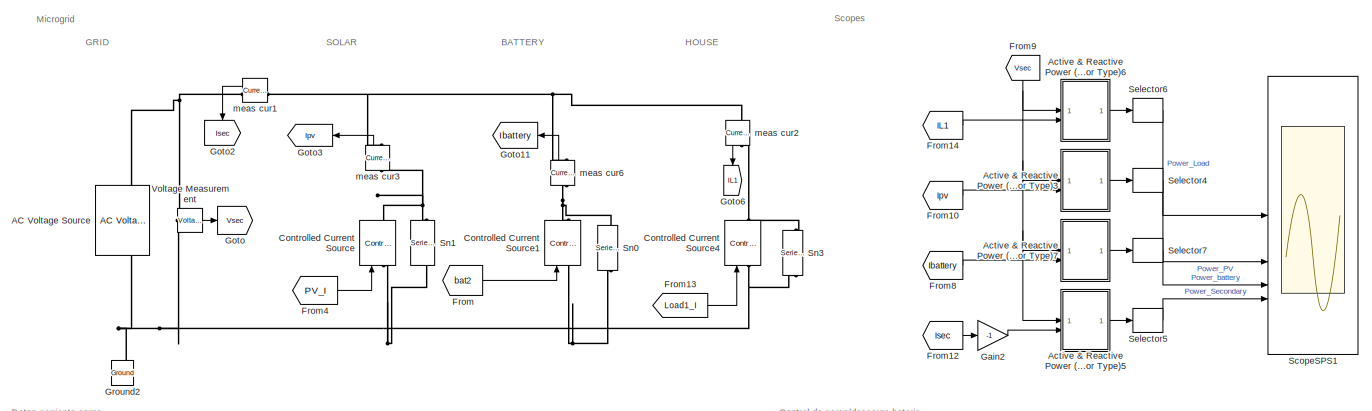
[diagram: root canvas - part 1/2, full width, top band]
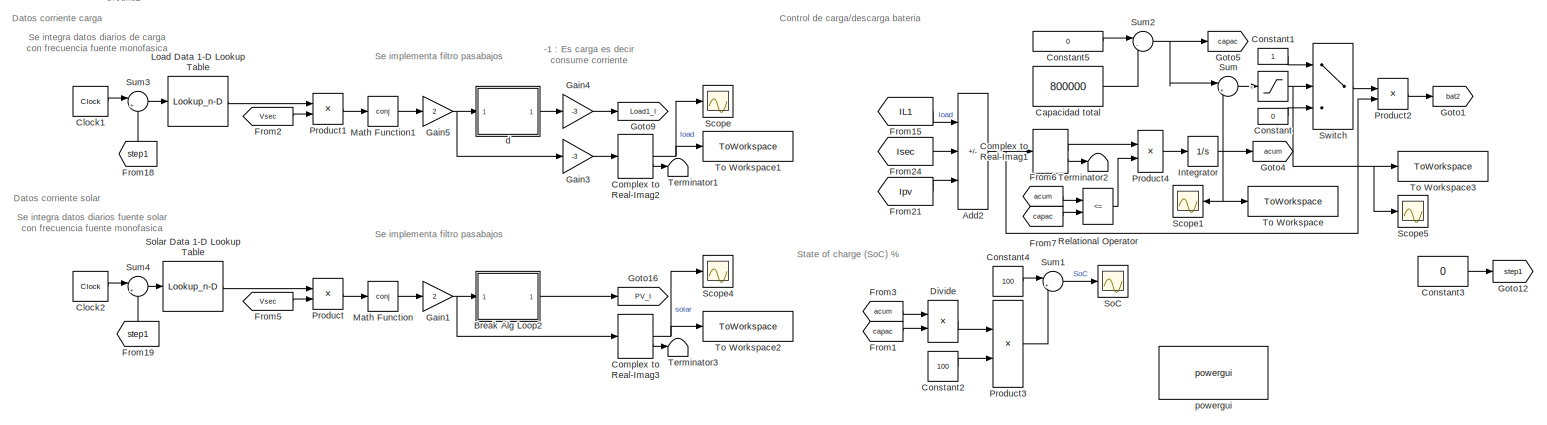
[diagram: root canvas - part 2/2, full width, bottom band]
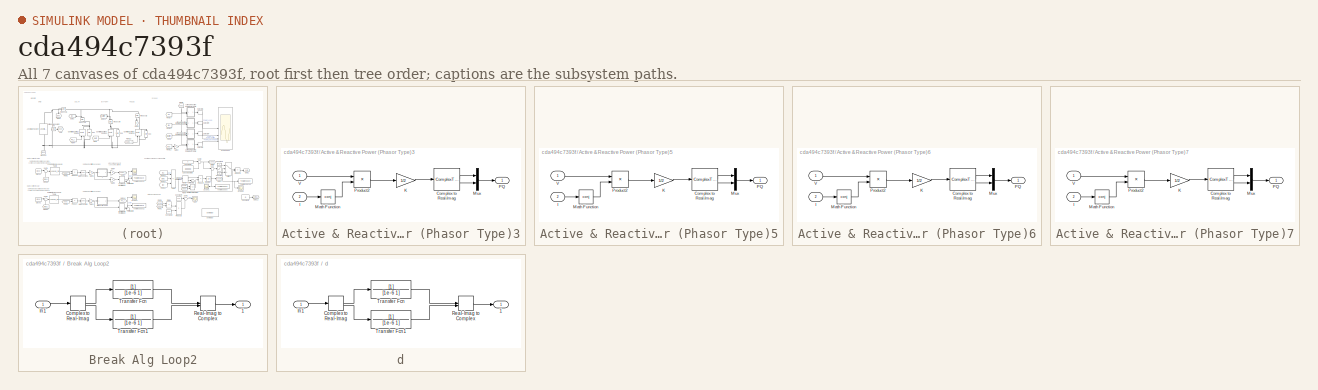
[diagram: thumbnail index - all 7 canvases of the model, root first then tree order]
MODEL slx_cda494c7393f
KIND model
CONFIG AbsTol = auto
CONFIG EnableMultiTasking = off
CONFIG FixedStep = 1/(1000)
CONFIG MaxStep = 50
CONFIG MinStep = auto
CONFIG PreLoadFcn = load('SmallScaleMicroGridSolarLoadData24h.mat')\n
CONFIG RelTol = 1e-4
CONFIG SampleTimeConstraint = Unconstrained
CONFIG SolverName = ode23tb
CONFIG StartTime = 0
CONFIG StopTime = 60*60*24
BLOCK [Saturate] -
  LowerLimit = 0
  UpperLimit = inf
BLOCK [Reference] AC Voltage Source  REF=spsACVoltageSourceLib/AC Voltage Source
  LibrarySourceBlock = sps_lib/Sources/AC Voltage Source
  SourceBlock = spsACVoltageSourceLib/AC Voltage Source
  SourceType = AC Voltage Source
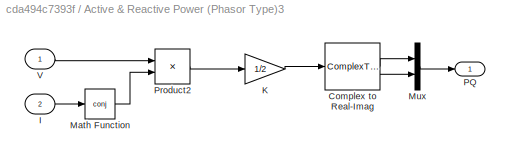
BLOCK [SubSystem] Active & Reactive Power (Phasor Type)3
  DialogController = POWERSYS.PowerSysDialog
BLOCK [ComplexToRealImag] Active & Reactive Power (Phasor Type)3/Complex to Real-Imag
BLOCK [Inport] Active & Reactive Power (Phasor Type)3/I
  Port = 2
BLOCK [Gain] Active & Reactive Power (Phasor Type)3/K
  Gain = 1/2
  OutDataTypeStr = Inherit: Same as input
  ParamDataTypeStr = Inherit: Same as input
  SaturateOnIntegerOverflow = on
BLOCK [Math] Active & Reactive Power (Phasor Type)3/Math Function
  Operator = conj
  SignedPower = on
BLOCK [Mux] Active & Reactive Power (Phasor Type)3/Mux
  DisplayOption = bar
  Inputs = 2
BLOCK [Outport] Active & Reactive Power (Phasor Type)3/PQ
  VectorParamsAs1DForOutWhenUnconnected = off
BLOCK [Product] Active & Reactive Power (Phasor Type)3/Product2
  InputSameDT = on
  OutDataTypeStr = Inherit: Same as first input
  SaturateOnIntegerOverflow = on
BLOCK [Inport] Active & Reactive Power (Phasor Type)3/V
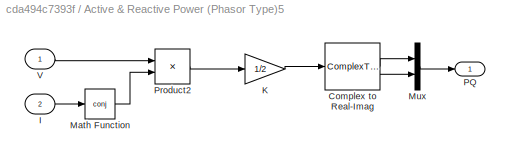
BLOCK [SubSystem] Active & Reactive Power (Phasor Type)5
  DialogController = POWERSYS.PowerSysDialog
BLOCK [ComplexToRealImag] Active & Reactive Power (Phasor Type)5/Complex to Real-Imag
BLOCK [Inport] Active & Reactive Power (Phasor Type)5/I
  Port = 2
BLOCK [Gain] Active & Reactive Power (Phasor Type)5/K
  Gain = 1/2
  OutDataTypeStr = Inherit: Same as input
  ParamDataTypeStr = Inherit: Same as input
  SaturateOnIntegerOverflow = on
BLOCK [Math] Active & Reactive Power (Phasor Type)5/Math Function
  Operator = conj
  SignedPower = on
BLOCK [Mux] Active & Reactive Power (Phasor Type)5/Mux
  DisplayOption = bar
  Inputs = 2
BLOCK [Outport] Active & Reactive Power (Phasor Type)5/PQ
  VectorParamsAs1DForOutWhenUnconnected = off
BLOCK [Product] Active & Reactive Power (Phasor Type)5/Product2
  InputSameDT = on
  OutDataTypeStr = Inherit: Same as first input
  SaturateOnIntegerOverflow = on
BLOCK [Inport] Active & Reactive Power (Phasor Type)5/V
BLOCK [SubSystem] Active & Reactive Power (Phasor Type)6
  DialogController = POWERSYS.PowerSysDialog
BLOCK [ComplexToRealImag] Active & Reactive Power (Phasor Type)6/Complex to Real-Imag
BLOCK [Inport] Active & Reactive Power (Phasor Type)6/I
  Port = 2
BLOCK [Gain] Active & Reactive Power (Phasor Type)6/K
  Gain = 1/2
  OutDataTypeStr = Inherit: Same as input
  ParamDataTypeStr = Inherit: Same as input
  SaturateOnIntegerOverflow = on
BLOCK [Math] Active & Reactive Power (Phasor Type)6/Math Function
  Operator = conj
  SignedPower = on
BLOCK [Mux] Active & Reactive Power (Phasor Type)6/Mux
  DisplayOption = bar
  Inputs = 2
BLOCK [Outport] Active & Reactive Power (Phasor Type)6/PQ
  VectorParamsAs1DForOutWhenUnconnected = off
BLOCK [Product] Active & Reactive Power (Phasor Type)6/Product2
  InputSameDT = on
  OutDataTypeStr = Inherit: Same as first input
  SaturateOnIntegerOverflow = on
BLOCK [Inport] Active & Reactive Power (Phasor Type)6/V
BLOCK [SubSystem] Active & Reactive Power (Phasor Type)7
  DialogController = POWERSYS.PowerSysDialog
BLOCK [ComplexToRealImag] Active & Reactive Power (Phasor Type)7/Complex to Real-Imag
BLOCK [Inport] Active & Reactive Power (Phasor Type)7/I
  Port = 2
BLOCK [Gain] Active & Reactive Power (Phasor Type)7/K
  Gain = 1/2
  OutDataTypeStr = Inherit: Same as input
  ParamDataTypeStr = Inherit: Same as input
  SaturateOnIntegerOverflow = on
BLOCK [Math] Active & Reactive Power (Phasor Type)7/Math Function
  Operator = conj
  SignedPower = on
BLOCK [Mux] Active & Reactive Power (Phasor Type)7/Mux
  DisplayOption = bar
  Inputs = 2
BLOCK [Outport] Active & Reactive Power (Phasor Type)7/PQ
  VectorParamsAs1DForOutWhenUnconnected = off
BLOCK [Product] Active & Reactive Power (Phasor Type)7/Product2
  InputSameDT = on
  OutDataTypeStr = Inherit: Same as first input
  SaturateOnIntegerOverflow = on
BLOCK [Inport] Active & Reactive Power (Phasor Type)7/V
BLOCK [Sum] Add2
  IconShape = rectangular
  Inputs = +--
BLOCK [SubSystem] Break Alg Loop2
BLOCK [Outport] Break Alg Loop2/1 
BLOCK [ComplexToRealImag] Break Alg Loop2/Complex to Real-Imag
BLOCK [Inport] Break Alg Loop2/In1
BLOCK [RealImagToComplex] Break Alg Loop2/Real-Imag to Complex
BLOCK [TransferFcn] Break Alg Loop2/Transfer Fcn
  Denominator = [1e-6 1]
BLOCK [TransferFcn] Break Alg Loop2/Transfer Fcn1
  Denominator = [1e-6 1]
BLOCK [Constant] Capacidad total
  Value = 800000
BLOCK [Clock] Clock1
  Decimation = 1
BLOCK [Clock] Clock2
  Decimation = 1
BLOCK [ComplexToRealImag] Complex to Real-Imag1
BLOCK [ComplexToRealImag] Complex to Real-Imag2
BLOCK [ComplexToRealImag] Complex to Real-Imag3
BLOCK [Constant] Constant
  Value = 0
BLOCK [Constant] Constant1
BLOCK [Constant] Constant2
  Value = 100
BLOCK [Constant] Constant3
  Value = 0
BLOCK [Constant] Constant4
  Value = 100
BLOCK [Constant] Constant5
  Value = 0
BLOCK [Reference] Controlled Current Source  REF=spsControlledCurrentSourceLib/Controlled Current Source
  NameLocation = right
  SourceBlock = spsControlledCurrentSourceLib/Controlled Current Source
  SourceType = Controlled Current Source
BLOCK [Reference] Controlled Current Source1  REF=spsControlledCurrentSourceLib/Controlled Current Source
  NameLocation = right
  SourceBlock = spsControlledCurrentSourceLib/Controlled Current Source
  SourceType = Controlled Current Source
BLOCK [Reference] Controlled Current Source4  REF=spsControlledCurrentSourceLib/Controlled Current Source
  NameLocation = right
  SourceBlock = spsControlledCurrentSourceLib/Controlled Current Source
  SourceType = Controlled Current Source
BLOCK [Product] Divide
  Inputs = */
BLOCK [From] From
  GotoTag = bat2
BLOCK [From] From1
  GotoTag = capac
BLOCK [From] From10
  GotoTag = Ipv
  TagVisibility = global
BLOCK [From] From12
  GotoTag = Isec
  TagVisibility = global
BLOCK [From] From13
  GotoTag = Load1_I
  TagVisibility = global
BLOCK [From] From14
  GotoTag = IL1
  TagVisibility = global
BLOCK [From] From15
  GotoTag = IL1
  TagVisibility = global
BLOCK [From] From18
  GotoTag = step1
  NameLocation = right
BLOCK [From] From19
  GotoTag = step1
  NameLocation = right
BLOCK [From] From2
  GotoTag = Vsec
  TagVisibility = global
BLOCK [From] From21
  GotoTag = Ipv
  TagVisibility = global
BLOCK [From] From24
  GotoTag = Isec
  TagVisibility = global
BLOCK [From] From3
  GotoTag = acum
BLOCK [From] From4
  GotoTag = PV_I
  TagVisibility = global
BLOCK [From] From5
  GotoTag = Vsec
  TagVisibility = global
BLOCK [From] From6
  GotoTag = acum
BLOCK [From] From7
  GotoTag = capac
BLOCK [From] From8
  GotoTag = Ibattery
  TagVisibility = global
BLOCK [From] From9
  GotoTag = Vsec
  NameLocation = left
  TagVisibility = global
BLOCK [Gain] Gain1
  Gain = 2
BLOCK [Gain] Gain2
  Gain = -1
BLOCK [Gain] Gain3
  Gain = -3
BLOCK [Gain] Gain4
  Gain = -3
BLOCK [Gain] Gain5
  Gain = 2
BLOCK [Goto] Goto
  GotoTag = Vsec
  NameLocation = top
  TagVisibility = global
BLOCK [Goto] Goto1
  GotoTag = bat2
BLOCK [Goto] Goto11
  GotoTag = Ibattery
  NameLocation = top
  TagVisibility = global
BLOCK [Goto] Goto12
  GotoTag = step1
BLOCK [Goto] Goto16
  GotoTag = PV_I
  TagVisibility = global
BLOCK [Goto] Goto2
  GotoTag = Isec
  NameLocation = left
  TagVisibility = global
BLOCK [Goto] Goto3
  GotoTag = Ipv
  NameLocation = top
  TagVisibility = global
BLOCK [Goto] Goto4
  GotoTag = acum
BLOCK [Goto] Goto5
  GotoTag = capac
BLOCK [Goto] Goto6
  GotoTag = IL1
  NameLocation = left
  TagVisibility = global
BLOCK [Goto] Goto9
  GotoTag = Load1_I
  TagVisibility = global
BLOCK [Reference] Ground2  REF=spsGroundLib/Ground
  NameLocation = right
  SourceBlock = spsGroundLib/Ground
  SourceType = Ground
BLOCK [Integrator] Integrator
BLOCK [Lookup_n-D] Load Data 1-D Lookup Table
  BeginIndexSearchUsingPreviousIndexResult = on
  BreakpointsForDimension1 = HPT_1min
  InputPortMap = u0
  InternalRulePriority = Speed
  NumberOfTableDimensions = 1
  RndMeth = Simplest
  Table = HPD_1min
BLOCK [Math] Math Function
  Operator = conj
BLOCK [Math] Math Function1
  Operator = conj
BLOCK [Product] Product
  Inputs = */
BLOCK [Product] Product1
  Inputs = */
BLOCK [Product] Product2
BLOCK [Product] Product3
BLOCK [Product] Product4
BLOCK [RelationalOperator] Relational Operator
  InputSameDT = off
  Operator = <=
  OutDataTypeStr = boolean
  RndMeth = Simplest
BLOCK [Scope] Scope
  Floating = off
  NumInputPorts = 1
  ScopeSpecificationString = Simulink.scopes.TimeScopeBlockCfg('CurrentConfiguration', extmgr.ConfigurationSet(extmgr.Configuration('Core','General UI',true),extmgr.Configuration('Core','Source UI',true),extmgr.Configuration('Sources','WiredSimulink',true,'DataLoggingVariableName','ScopeData1'),extmgr.Configuration('Visuals','Time Domain',true,'SerializedDisplays',{struct('MinYLimReal','-58.33881','MaxYLimReal','-1.14567','YL...<+1600ch>
BLOCK [Scope] Scope1
  Floating = off
  NameLocation = top
  NumInputPorts = 1
  ScopeSpecificationString = Simulink.scopes.TimeScopeBlockCfg('CurrentConfiguration', extmgr.ConfigurationSet(extmgr.Configuration('Core','General UI',true),extmgr.Configuration('Core','Source UI',true),extmgr.Configuration('Sources','WiredSimulink',true,'DataLoggingVariableName','ScopeData2'),extmgr.Configuration('Visuals','Time Domain',true,'SerializedDisplays',{struct('MinYLimReal','-330757.80912','MaxYLimReal','36750.867...<+1652ch>
BLOCK [Scope] Scope4
  Floating = off
  NumInputPorts = 1
  ScopeSpecificationString = Simulink.scopes.TimeScopeBlockCfg('CurrentConfiguration', extmgr.ConfigurationSet(extmgr.Configuration('Core','General UI',true),extmgr.Configuration('Core','Source UI',true),extmgr.Configuration('Sources','WiredSimulink',true,'DataLoggingVariableName','ScopeData2'),extmgr.Configuration('Visuals','Time Domain',true,'SerializedDisplays',{struct('MinYLimReal','-4.38596','MaxYLimReal','39.47368','YLa...<+1920ch>
BLOCK [Scope] Scope5
  Floating = off
  NumInputPorts = 1
  ScopeSpecificationString = Simulink.scopes.TimeScopeBlockCfg('CurrentConfiguration', extmgr.ConfigurationSet(extmgr.Configuration('Core','General UI',true),extmgr.Configuration('Core','Source UI',true),extmgr.Configuration('Sources','WiredSimulink',true,'DataLoggingVariableName','ScopeData1'),extmgr.Configuration('Visuals','Time Domain',true,'SerializedDisplays',{struct('MinYLimReal','-100000.00000','MaxYLimReal','900000.00...<+2365ch>
BLOCK [Scope] ScopeSPS1
  Floating = off
  NumInputPorts = 4
  ScopeSpecificationString = Simulink.scopes.TimeScopeBlockCfg('CurrentConfiguration', extmgr.ConfigurationSet(extmgr.Configuration('Core','General UI',true),extmgr.Configuration('Core','Source UI',true),extmgr.Configuration('Sources','WiredSimulink',true,'DataLogging',true,'DataLoggingVariableName','ScopeData3','DataLoggingSaveFormat','StructureWithTime','DataLoggingDecimation','1','DataLoggingDecimateData',true),extmgr.Conf...<+4472ch>
BLOCK [Selector] Selector4
  IndexOptions = Index vector (dialog)
  Indices = 1
  InputPortWidth = 2
  OutputSizes = 1
BLOCK [Selector] Selector5
  IndexOptions = Index vector (dialog)
  Indices = 1
  InputPortWidth = 2
  OutputSizes = 1
BLOCK [Selector] Selector6
  IndexOptions = Index vector (dialog)
  Indices = 1
  InputPortWidth = 2
  OutputSizes = 1
BLOCK [Selector] Selector7
  IndexOptions = Index vector (dialog)
  Indices = 1
  InputPortWidth = 2
  OutputSizes = 1
BLOCK [Reference] Sn0  REF=spsSeriesRLCBranchLib/Series RLC Branch
  NameLocation = right
  SourceBlock = spsSeriesRLCBranchLib/Series RLC Branch
  SourceType = Series RLC Branch
BLOCK [Reference] Sn1  REF=spsSeriesRLCBranchLib/Series RLC Branch
  NameLocation = right
  SourceBlock = spsSeriesRLCBranchLib/Series RLC Branch
  SourceType = Series RLC Branch
BLOCK [Reference] Sn3  REF=spsSeriesRLCBranchLib/Series RLC Branch
  NameLocation = right
  SourceBlock = spsSeriesRLCBranchLib/Series RLC Branch
  SourceType = Series RLC Branch
BLOCK [Scope] SoC
  Floating = off
  NumInputPorts = 1
  ScopeSpecificationString = Simulink.scopes.TimeScopeBlockCfg('CurrentConfiguration', extmgr.ConfigurationSet(extmgr.Configuration('Core','General UI',true),extmgr.Configuration('Core','Source UI',true),extmgr.Configuration('Sources','WiredSimulink',true,'DataLoggingVariableName','ScopeData1'),extmgr.Configuration('Visuals','Time Domain',true,'SerializedDisplays',{struct('MinYLimReal','-12.5','MaxYLimReal','112.5','YLabelRea...<+1603ch>
BLOCK [Lookup_n-D] Solar Data 1-D Lookup Table
  BeginIndexSearchUsingPreviousIndexResult = on
  BreakpointsForDimension1 = SPT_1min
  InputPortMap = u0
  InternalRulePriority = Speed
  NumberOfTableDimensions = 1
  RndMeth = Simplest
  Table = SPD_1min
BLOCK [Sum] Sum
  Inputs = |+-
BLOCK [Sum] Sum1
  Inputs = |+-
BLOCK [Sum] Sum2
  Inputs = |-+
BLOCK [Sum] Sum3
  Inputs = |++
BLOCK [Sum] Sum4
  Inputs = |++
BLOCK [Switch] Switch
  Criteria = u2 > Threshold
  InputSameDT = off
  SaturateOnIntegerOverflow = off
BLOCK [Terminator] Terminator1
BLOCK [Terminator] Terminator2
BLOCK [Terminator] Terminator3
BLOCK [ToWorkspace] To Workspace
  FixptAsFi = on
  MaxDataPoints = inf
  SampleTime = -1
  VariableName = acum_out
BLOCK [ToWorkspace] To Workspace1
  FixptAsFi = on
  MaxDataPoints = inf
  SampleTime = -1
  VariableName = load_out
BLOCK [ToWorkspace] To Workspace2
  FixptAsFi = on
  MaxDataPoints = inf
  SampleTime = -1
  VariableName = solar_out
BLOCK [ToWorkspace] To Workspace3
  FixptAsFi = on
  MaxDataPoints = inf
  SampleTime = -1
  VariableName = batt_out
BLOCK [Reference] Voltage Measurement  REF=spsVoltageMeasurementLib/Voltage Measurement
  SourceBlock = spsVoltageMeasurementLib/Voltage Measurement
  SourceType = Voltage Measurement
BLOCK [SubSystem] d
BLOCK [Outport] d/1 
BLOCK [ComplexToRealImag] d/Complex to Real-Imag
BLOCK [Inport] d/In1
BLOCK [RealImagToComplex] d/Real-Imag to Complex
BLOCK [TransferFcn] d/Transfer Fcn
  Denominator = [1e-6 1]
BLOCK [TransferFcn] d/Transfer Fcn1
  Denominator = [1e-6 1]
BLOCK [Reference] meas cur1  REF=spsCurrentMeasurementLib/Current Measurement
  SourceBlock = spsCurrentMeasurementLib/Current Measurement
  SourceType = Current Measurement
BLOCK [Reference] meas cur2  REF=spsCurrentMeasurementLib/Current Measurement
  NameLocation = right
  SourceBlock = spsCurrentMeasurementLib/Current Measurement
  SourceType = Current Measurement
BLOCK [Reference] meas cur3  REF=spsCurrentMeasurementLib/Current Measurement
  NameLocation = left
  SourceBlock = spsCurrentMeasurementLib/Current Measurement
  SourceType = Current Measurement
BLOCK [Reference] meas cur6  REF=spsCurrentMeasurementLib/Current Measurement
  NameLocation = left
  SourceBlock = spsCurrentMeasurementLib/Current Measurement
  SourceType = Current Measurement
BLOCK [Reference] powergui  REF=spspowerguiLib/powergui
  SourceBlock = spspowerguiLib/powergui
  SourceType = PSB option menu block
ANNOTATION (root): Se implementa filtro pasabajos
ANNOTATION (root): -1 : Es carga es decir consume corriente
ANNOTATION (root): Se integra datos diarios de carga con frecuencia fuente monofasica
ANNOTATION (root): Se integra datos diarios fuente solar con frecuencia fuente monofasica
ANNOTATION (root): BATTERY
ANNOTATION (root): Control de carga/descarga bateria
ANNOTATION (root): Datos corriente carga
ANNOTATION (root): Datos corriente solar
ANNOTATION (root): GRID
ANNOTATION (root): HOUSE
ANNOTATION (root): Microgrid
ANNOTATION (root): SOLAR
ANNOTATION (root): Scopes
ANNOTATION (root): State of charge (SoC) %
NET -:1 -> Scope5:1, Switch:2, To Workspace3:1
LINE Active & Reactive Power (Phasor Type)3:1 -> Selector4:1
LINE Active & Reactive Power (Phasor Type)5:1 -> Selector5:1
LINE Active & Reactive Power (Phasor Type)6:1 -> Selector6:1
LINE Active & Reactive Power (Phasor Type)7:1 -> Selector7:1
NET Add2:1 -> Complex to Real-Imag1:1, Product2:2
LINE Break Alg Loop2/Complex to Real-Imag:1 -> Break Alg Loop2/Transfer Fcn:1
LINE Break Alg Loop2/Complex to Real-Imag:2 -> Break Alg Loop2/Transfer Fcn1:1
LINE Break Alg Loop2/In1:1 -> Break Alg Loop2/Complex to Real-Imag:1
LINE Break Alg Loop2/Real-Imag to Complex:1 -> Break Alg Loop2/1 :1
LINE Break Alg Loop2/Transfer Fcn1:1 -> Break Alg Loop2/Real-Imag to Complex:2
LINE Break Alg Loop2/Transfer Fcn:1 -> Break Alg Loop2/Real-Imag to Complex:1
LINE Break Alg Loop2:1 -> Goto16:1
LINE Capacidad total:1 -> Sum2:2
LINE Clock1:1 -> Sum3:1
LINE Clock2:1 -> Sum4:1
LINE Complex to Real-Imag1:1 -> Product4:1
LINE Complex to Real-Imag1:2 -> Terminator2:1
NET Complex to Real-Imag2:1 -> Scope:1, To Workspace1:1
LINE Complex to Real-Imag2:2 -> Terminator1:1
NET Complex to Real-Imag3:1 -> Scope4:1, To Workspace2:1
LINE Complex to Real-Imag3:2 -> Terminator3:1
LINE Constant1:1 -> Switch:1
LINE Constant2:1 -> Product3:2
LINE Constant3:1 -> Goto12:1
LINE Constant4:1 -> Sum1:1
LINE Constant5:1 -> Sum2:1
LINE Constant:1 -> Switch:3
LINE Divide:1 -> Product3:1
LINE From10:1 -> Active & Reactive Power (Phasor Type)3:2
LINE From12:1 -> Gain2:1
LINE From13:1 -> Controlled Current Source4:1
LINE From14:1 -> Active & Reactive Power (Phasor Type)6:2
LINE From15:1 -> Add2:1
LINE From18:1 -> Sum3:2
LINE From19:1 -> Sum4:2
LINE From1:1 -> Divide:2
LINE From21:1 -> Add2:3
LINE From24:1 -> Add2:2
LINE From2:1 -> Product1:2
LINE From3:1 -> Divide:1
LINE From4:1 -> Controlled Current Source:1
LINE From5:1 -> Product:2
LINE From6:1 -> Relational Operator:1
LINE From7:1 -> Relational Operator:2
LINE From8:1 -> Active & Reactive Power (Phasor Type)7:2
NET From9:1 -> Active & Reactive Power (Phasor Type)3:1, Active & Reactive Power (Phasor Type)5:1, Active & Reactive Power (Phasor Type)6:1, Active & Reactive Power (Phasor Type)7:1
LINE From:1 -> Controlled Current Source1:1
NET Gain1:1 -> Break Alg Loop2:1, Complex to Real-Imag3:1
LINE Gain2:1 -> Active & Reactive Power (Phasor Type)5:2
LINE Gain3:1 -> Complex to Real-Imag2:1
LINE Gain4:1 -> Goto9:1
NET Gain5:1 -> Gain3:1, d:1
NET Integrator:1 -> Goto4:1, Scope1:1, Sum:2, To Workspace:1
LINE Load Data 1-D Lookup Table:1 -> Product1:1
LINE Math Function1:1 -> Gain5:1
LINE Math Function:1 -> Gain1:1
LINE Product1:1 -> Math Function1:1
LINE Product2:1 -> Goto1:1
LINE Product3:1 -> Sum1:2
LINE Product4:1 -> Integrator:1
LINE Product:1 -> Math Function:1
LINE Relational Operator:1 -> Product4:2
LINE Selector4:1 -> ScopeSPS1:2
LINE Selector5:1 -> ScopeSPS1:4
LINE Selector6:1 -> ScopeSPS1:1
LINE Selector7:1 -> ScopeSPS1:3
LINE Solar Data 1-D Lookup Table:1 -> Product:1
LINE Sum1:1 -> SoC:1
NET Sum2:1 -> Goto5:1, Sum:1
LINE Sum3:1 -> Load Data 1-D Lookup Table:1
LINE Sum4:1 -> Solar Data 1-D Lookup Table:1
LINE Sum:1 -> -:1
LINE Switch:1 -> Product2:1
LINE Voltage Measurement:1 -> Goto:1
LINE d/Complex to Real-Imag:1 -> d/Transfer Fcn:1
LINE d/Complex to Real-Imag:2 -> d/Transfer Fcn1:1
LINE d/In1:1 -> d/Complex to Real-Imag:1
LINE d/Real-Imag to Complex:1 -> d/1 :1
LINE d/Transfer Fcn1:1 -> d/Real-Imag to Complex:2
LINE d/Transfer Fcn:1 -> d/Real-Imag to Complex:1
LINE d:1 -> Gain4:1
LINE meas cur1:1 -> Goto2:1
LINE meas cur2:1 -> Goto6:1
LINE meas cur3:1 -> Goto3:1
LINE meas cur6:1 -> Goto11:1
PNET net1: AC Voltage Source:LConn1 -- Controlled Current Source1:LConn1 -- Controlled Current Source4:LConn1 -- Controlled Current Source:LConn1 -- Ground2:LConn1 -- Sn0:RConn1 -- Sn1:RConn1 -- Sn3:RConn1 -- Voltage Measurement:LConn2
PNET net2: AC Voltage Source:RConn1 -- Voltage Measurement:LConn1 -- meas cur1:RConn1
PNET net3: Controlled Current Source1:RConn1 -- Sn0:LConn1 -- meas cur6:LConn1
PNET net4: Controlled Current Source4:RConn1 -- Sn3:LConn1 -- meas cur2:RConn1
PNET net5: Controlled Current Source:RConn1 -- Sn1:LConn1 -- meas cur3:LConn1
PNET net6: meas cur1:LConn1 -- meas cur2:LConn1 -- meas cur3:RConn1 -- meas cur6:RConn1
note: NET lines group one-source signal fan-out (src -> all destinations, sorted); 1:1 wires keep LINE; PNET lines group multi-terminal physical nets as a canonical sorted terminal list (undirected conserving connections); 2-terminal nets keep the pairwise PLINE form
